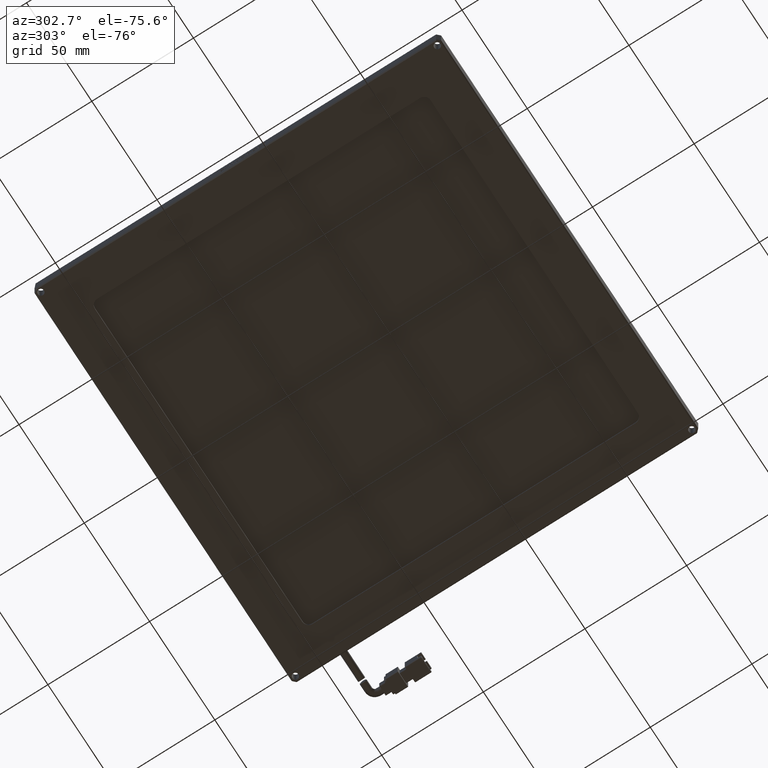
[diagram: clean part render]
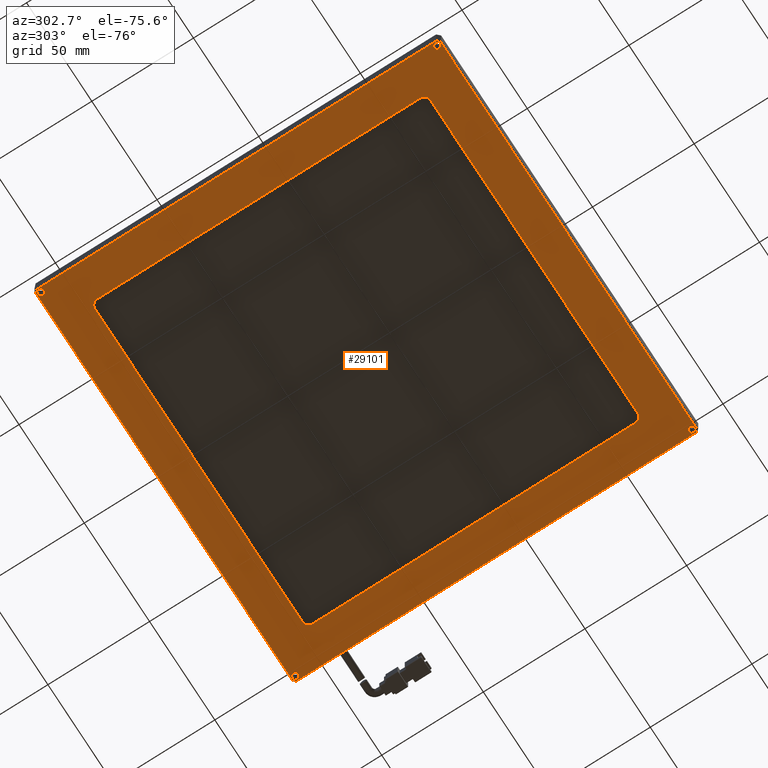
[diagram: same view with one face highlighted and labeled with its STEP entity id]
A machine part, auxiliary view. The second image highlights one B-rep face of the part: STEP entity #29101.
In plain terms, the highlighted planar face has unit normal (0, 0, -1).
Its self-contained STEP definition (entity closure, byte-faithful):
#13 = EDGE_CURVE ( 'NONE', #30790, #24594, #18859, .T. ) ;
#292 = LINE ( 'NONE', #3080, #12612 ) ;
#310 = CIRCLE ( 'NONE', #1237, 3.000000000000002700 ) ;
#332 = VERTEX_POINT ( 'NONE', #2171 ) ;
#413 = DIRECTION ( 'NONE',  ( 1.000000000000000000, 0.0000000000000000000, 0.0000000000000000000 ) ) ;
#469 = FACE_BOUND ( 'NONE', #778, .T. ) ;
#688 = CARTESIAN_POINT ( 'NONE',  ( 54.07393781975250100, 114.4508215962441000, -2.999999999999991100 ) ) ;
#711 = CARTESIAN_POINT ( 'NONE',  ( -140.2189553990610300, 112.4508215962441300, -3.000000000000000400 ) ) ;
#741 = VERTEX_POINT ( 'NONE', #29670 ) ;
#778 = EDGE_LOOP ( 'NONE', ( #16551, #5130 ) ) ;
#824 = DIRECTION ( 'NONE',  ( -0.0000000000000000000, -0.0000000000000000000, 1.000000000000000000 ) ) ;
#918 = AXIS2_PLACEMENT_3D ( 'NONE', #3998, #21204, #6425 ) ;
#1237 = AXIS2_PLACEMENT_3D ( 'NONE', #28952, #14183, #31458 ) ;
#1297 = CARTESIAN_POINT ( 'NONE',  ( -143.2189553990610300, 112.4508215962441300, -3.000000000000000400 ) ) ;
#1676 = DIRECTION ( 'NONE',  ( 1.000000000000000000, 0.0000000000000000000, 0.0000000000000000000 ) ) ;
#2059 = EDGE_CURVE ( 'NONE', #24871, #14903, #27898, .T. ) ;
#2142 = EDGE_CURVE ( 'NONE', #15700, #3007, #17507, .T. ) ;
#2171 = CARTESIAN_POINT ( 'NONE',  ( -142.5118486178745100, 114.4508215962441000, -3.000000000000000400 ) ) ;
#2452 = AXIS2_PLACEMENT_3D ( 'NONE', #29978, #15179, #413 ) ;
#2936 = CIRCLE ( 'NONE', #2452, 1.500000000000001300 ) ;
#2954 = ORIENTED_EDGE ( 'NONE', *, *, #11433, .T. ) ;
#3007 = VERTEX_POINT ( 'NONE', #24460 ) ;
#3080 = CARTESIAN_POINT ( 'NONE',  ( 55.28104460093896900, 113.2437148150576100, -2.999999999999986700 ) ) ;
#3350 = CARTESIAN_POINT ( 'NONE',  ( -144.2189553990610300, -67.54917840375586000, -3.000000000000000400 ) ) ;
#3359 = VERTEX_POINT ( 'NONE', #31782 ) ;
#3998 = CARTESIAN_POINT ( 'NONE',  ( -141.7189553990610300, -82.54917840375587400, -3.000000000000000400 ) ) ;
#4219 = CARTESIAN_POINT ( 'NONE',  ( 53.28104460093896200, -82.54917840375587400, -3.000000000000000400 ) ) ;
#4317 = AXIS2_PLACEMENT_3D ( 'NONE', #27905, #13156, #30449 ) ;
#4353 = CARTESIAN_POINT ( 'NONE',  ( 35.28104460093897600, -64.54917840375587400, -3.000000000000000400 ) ) ;
#4537 = ORIENTED_EDGE ( 'NONE', *, *, #19738, .T. ) ;
#4564 = CARTESIAN_POINT ( 'NONE',  ( 55.28104460093894100, 114.9508215962441300, -3.000000000000000400 ) ) ;
#4940 = DIRECTION ( 'NONE',  ( 0.0000000000000000000, 1.000000000000000000, 0.0000000000000000000 ) ) ;
#5125 = CIRCLE ( 'NONE', #20017, 1.500000000000001300 ) ;
#5130 = ORIENTED_EDGE ( 'NONE', *, *, #18262, .T. ) ;
#5170 = EDGE_CURVE ( 'NONE', #24581, #27344, #20148, .T. ) ;
#5208 = AXIS2_PLACEMENT_3D ( 'NONE', #12693, #29987, #15190 ) ;
#5272 = AXIS2_PLACEMENT_3D ( 'NONE', #12577, #29879, #15078 ) ;
#5401 = ORIENTED_EDGE ( 'NONE', *, *, #13168, .T. ) ;
#5645 = CARTESIAN_POINT ( 'NONE',  ( -142.5118486178745100, -84.54917840375586000, -3.000000000000007500 ) ) ;
#5815 = VECTOR ( 'NONE', #25730, 1000.000000000000100 ) ;
#5878 = LINE ( 'NONE', #24344, #24770 ) ;
#5970 = AXIS2_PLACEMENT_3D ( 'NONE', #4353, #21585, #6802 ) ;
#6017 = AXIS2_PLACEMENT_3D ( 'NONE', #9408, #26631, #11854 ) ;
#6043 = ORIENTED_EDGE ( 'NONE', *, *, #25933, .T. ) ;
#6160 = CARTESIAN_POINT ( 'NONE',  ( -142.5118486178745100, 114.4508215962441000, -3.000000000000000400 ) ) ;
#6204 = FACE_OUTER_BOUND ( 'NONE', #16748, .T. ) ;
#6329 = ORIENTED_EDGE ( 'NONE', *, *, #26061, .T. ) ;
#6425 = DIRECTION ( 'NONE',  ( 1.000000000000000000, 0.0000000000000000000, 0.0000000000000000000 ) ) ;
#6667 = DIRECTION ( 'NONE',  ( 1.000000000000000000, 0.0000000000000000000, 0.0000000000000000000 ) ) ;
#6802 = DIRECTION ( 'NONE',  ( 1.000000000000000000, 0.0000000000000000000, 0.0000000000000000000 ) ) ;
#7035 = ORIENTED_EDGE ( 'NONE', *, *, #30766, .T. ) ;
#7727 = ORIENTED_EDGE ( 'NONE', *, *, #21177, .T. ) ;
#7956 = VECTOR ( 'NONE', #28204, 1000.000000000000000 ) ;
#8343 = CARTESIAN_POINT ( 'NONE',  ( -144.2189553990610300, -84.54917840375584600, -3.000000000000000400 ) ) ;
#8359 = VERTEX_POINT ( 'NONE', #5645 ) ;
#8395 = EDGE_CURVE ( 'NONE', #30790, #8359, #28918, .T. ) ;
#8432 = CARTESIAN_POINT ( 'NONE',  ( -143.7189553990610000, -83.34207162256935000, -3.000000000000008900 ) ) ;
#8648 = LINE ( 'NONE', #4564, #20256 ) ;
#8876 = LINE ( 'NONE', #21960, #21991 ) ;
#9237 = VECTOR ( 'NONE', #18074, 1000.000000000000000 ) ;
#9359 = CARTESIAN_POINT ( 'NONE',  ( 54.78104460093896900, 112.4508215962441300, -3.000000000000000400 ) ) ;
#9408 = CARTESIAN_POINT ( 'NONE',  ( -123.7189553990610300, -64.54917840375588900, -3.000000000000000400 ) ) ;
#9663 = ORIENTED_EDGE ( 'NONE', *, *, #8395, .T. ) ;
#9886 = VERTEX_POINT ( 'NONE', #1297 ) ;
#9913 = EDGE_CURVE ( 'NONE', #14903, #24871, #20487, .T. ) ;
#10250 = CARTESIAN_POINT ( 'NONE',  ( 38.28104460093897600, 114.9508215962441300, -3.000000000000000400 ) ) ;
#10253 = ORIENTED_EDGE ( 'NONE', *, *, #14654, .T. ) ;
#10815 = ORIENTED_EDGE ( 'NONE', *, *, #14901, .T. ) ;
#10844 = EDGE_CURVE ( 'NONE', #332, #24247, #18781, .T. ) ;
#10870 = PLANE ( 'NONE',  #13078 ) ;
#10984 = CARTESIAN_POINT ( 'NONE',  ( -144.2189553990610300, 114.9508215962441300, -3.000000000000000400 ) ) ;
#10993 = CARTESIAN_POINT ( 'NONE',  ( -143.7189553990609700, -83.34207162256937800, -3.000000000000014200 ) ) ;
#11021 = EDGE_CURVE ( 'NONE', #9886, #23800, #2936, .T. ) ;
#11386 = CARTESIAN_POINT ( 'NONE',  ( 55.28104460093894100, -83.34207162256939200, -3.000000000000000400 ) ) ;
#11428 = CARTESIAN_POINT ( 'NONE',  ( 53.28104460093896200, 112.4508215962441300, -3.000000000000000400 ) ) ;
#11433 = EDGE_CURVE ( 'NONE', #741, #24594, #8648, .T. ) ;
#11854 = DIRECTION ( 'NONE',  ( 1.000000000000000000, 0.0000000000000000000, 0.0000000000000000000 ) ) ;
#12224 = CARTESIAN_POINT ( 'NONE',  ( -144.2189553990610300, 114.4508215962441000, -3.000000000000000400 ) ) ;
#12445 = CARTESIAN_POINT ( 'NONE',  ( -126.7189553990610300, -64.54917840375588900, -3.000000000000000400 ) ) ;
#12561 = CARTESIAN_POINT ( 'NONE',  ( 54.07393781975250100, -84.54917840375583200, -2.999999999999988500 ) ) ;
#12577 = CARTESIAN_POINT ( 'NONE',  ( 35.28104460093894800, 94.45082159624411100, -3.000000000000000400 ) ) ;
#12612 = VECTOR ( 'NONE', #22793, 1000.000000000000100 ) ;
#12693 = CARTESIAN_POINT ( 'NONE',  ( 53.28104460093896200, 112.4508215962441300, -3.000000000000000400 ) ) ;
#12696 = DIRECTION ( 'NONE',  ( 0.0000000000000000000, 1.000000000000000000, 0.0000000000000000000 ) ) ;
#12878 = EDGE_LOOP ( 'NONE', ( #25726, #31930 ) ) ;
#13018 = VECTOR ( 'NONE', #29511, 1000.000000000000000 ) ;
#13026 = ORIENTED_EDGE ( 'NONE', *, *, #2142, .T. ) ;
#13078 = AXIS2_PLACEMENT_3D ( 'NONE', #10984, #28220, #13460 ) ;
#13156 = DIRECTION ( 'NONE',  ( -0.0000000000000000000, -0.0000000000000000000, 1.000000000000000000 ) ) ;
#13168 = EDGE_CURVE ( 'NONE', #22637, #15700, #15489, .T. ) ;
#13460 = DIRECTION ( 'NONE',  ( -1.000000000000000000, 0.0000000000000000000, -0.0000000000000000000 ) ) ;
#13900 = CARTESIAN_POINT ( 'NONE',  ( 54.78104460093896900, -82.54917840375587400, -3.000000000000000400 ) ) ;
#13942 = DIRECTION ( 'NONE',  ( 1.000000000000000000, 0.0000000000000000000, 0.0000000000000000000 ) ) ;
#14183 = DIRECTION ( 'NONE',  ( 0.0000000000000000000, 0.0000000000000000000, 1.000000000000000000 ) ) ;
#14356 = VECTOR ( 'NONE', #12696, 1000.000000000000000 ) ;
#14488 = DIRECTION ( 'NONE',  ( -0.0000000000000000000, -1.000000000000000000, -0.0000000000000000000 ) ) ;
#14506 = CARTESIAN_POINT ( 'NONE',  ( 35.28104460093897600, -67.54917840375587400, -3.000000000000000400 ) ) ;
#14654 = EDGE_CURVE ( 'NONE', #17682, #3359, #23753, .T. ) ;
#14753 = ORIENTED_EDGE ( 'NONE', *, *, #13, .F. ) ;
#14901 = EDGE_CURVE ( 'NONE', #3359, #21448, #27628, .T. ) ;
#14903 = VERTEX_POINT ( 'NONE', #28321 ) ;
#15078 = DIRECTION ( 'NONE',  ( 1.000000000000000000, 0.0000000000000000000, 0.0000000000000000000 ) ) ;
#15179 = DIRECTION ( 'NONE',  ( -0.0000000000000000000, -0.0000000000000000000, 1.000000000000000000 ) ) ;
#15190 = DIRECTION ( 'NONE',  ( 1.000000000000000000, 0.0000000000000000000, 0.0000000000000000000 ) ) ;
#15489 = LINE ( 'NONE', #3350, #21237 ) ;
#15585 = CARTESIAN_POINT ( 'NONE',  ( -141.7189553990610300, 112.4508215962441300, -3.000000000000000400 ) ) ;
#15700 = VERTEX_POINT ( 'NONE', #14506 ) ;
#15744 = VERTEX_POINT ( 'NONE', #12445 ) ;
#16444 = DIRECTION ( 'NONE',  ( -0.0000000000000000000, -0.0000000000000000000, 1.000000000000000000 ) ) ;
#16551 = ORIENTED_EDGE ( 'NONE', *, *, #5170, .T. ) ;
#16748 = EDGE_LOOP ( 'NONE', ( #6329, #19308, #2954, #14753, #9663, #31591, #7035, #21105 ) ) ;
#17496 = CARTESIAN_POINT ( 'NONE',  ( -143.7189553990610000, 113.2437148150576100, -2.999999999999995100 ) ) ;
#17507 = CIRCLE ( 'NONE', #5970, 3.000000000000002700 ) ;
#17682 = VERTEX_POINT ( 'NONE', #18945 ) ;
#17918 = CARTESIAN_POINT ( 'NONE',  ( -123.7189553990610400, 97.45082159624411100, -3.000000000000000400 ) ) ;
#18062 = DIRECTION ( 'NONE',  ( 1.000000000000000000, 0.0000000000000000000, 0.0000000000000000000 ) ) ;
#18074 = DIRECTION ( 'NONE',  ( -1.000000000000000000, 0.0000000000000000000, -0.0000000000000000000 ) ) ;
#18077 = VECTOR ( 'NONE', #23326, 1000.000000000000000 ) ;
#18091 = VERTEX_POINT ( 'NONE', #8432 ) ;
#18117 = DIRECTION ( 'NONE',  ( 1.000000000000000000, -0.0000000000000000000, 0.0000000000000000000 ) ) ;
#18262 = EDGE_CURVE ( 'NONE', #27344, #24581, #31946, .T. ) ;
#18362 = ORIENTED_EDGE ( 'NONE', *, *, #28048, .T. ) ;
#18466 = ORIENTED_EDGE ( 'NONE', *, *, #30860, .T. ) ;
#18601 = FACE_BOUND ( 'NONE', #12878, .T. ) ;
#18781 = LINE ( 'NONE', #6160, #31907 ) ;
#18859 = LINE ( 'NONE', #12561, #18077 ) ;
#18945 = CARTESIAN_POINT ( 'NONE',  ( 38.28104460093895500, 94.45082159624411100, -3.000000000000000400 ) ) ;
#19308 = ORIENTED_EDGE ( 'NONE', *, *, #29535, .F. ) ;
#19394 = CIRCLE ( 'NONE', #6017, 3.000000000000002700 ) ;
#19738 = EDGE_CURVE ( 'NONE', #23800, #9886, #5125, .T. ) ;
#19745 = CARTESIAN_POINT ( 'NONE',  ( 54.07393781975253000, -84.54917840375584600, -2.999999999999993300 ) ) ;
#20017 = AXIS2_PLACEMENT_3D ( 'NONE', #15585, #824, #18062 ) ;
#20098 = AXIS2_PLACEMENT_3D ( 'NONE', #11428, #28709, #13942 ) ;
#20148 = CIRCLE ( 'NONE', #4317, 1.500000000000001300 ) ;
#20256 = VECTOR ( 'NONE', #14488, 1000.000000000000000 ) ;
#20487 = CIRCLE ( 'NONE', #918, 1.500000000000001300 ) ;
#21105 = ORIENTED_EDGE ( 'NONE', *, *, #10844, .F. ) ;
#21106 = AXIS2_PLACEMENT_3D ( 'NONE', #4219, #21455, #6667 ) ;
#21177 = EDGE_CURVE ( 'NONE', #15744, #22637, #19394, .T. ) ;
#21204 = DIRECTION ( 'NONE',  ( -0.0000000000000000000, -0.0000000000000000000, 1.000000000000000000 ) ) ;
#21237 = VECTOR ( 'NONE', #18117, 1000.000000000000000 ) ;
#21448 = VERTEX_POINT ( 'NONE', #17918 ) ;
#21455 = DIRECTION ( 'NONE',  ( -0.0000000000000000000, -0.0000000000000000000, 1.000000000000000000 ) ) ;
#21579 = EDGE_CURVE ( 'NONE', #18091, #8359, #31301, .T. ) ;
#21585 = DIRECTION ( 'NONE',  ( 0.0000000000000000000, 0.0000000000000000000, 1.000000000000000000 ) ) ;
#21740 = EDGE_LOOP ( 'NONE', ( #5401, #13026, #18466, #10253, #10815, #6043, #25927, #7727 ) ) ;
#21782 = EDGE_CURVE ( 'NONE', #28418, #15744, #8876, .T. ) ;
#21894 = EDGE_CURVE ( 'NONE', #22213, #23031, #27386, .T. ) ;
#21960 = CARTESIAN_POINT ( 'NONE',  ( -126.7189553990610300, 114.9508215962441300, -3.000000000000000400 ) ) ;
#21991 = VECTOR ( 'NONE', #24451, 1000.000000000000000 ) ;
#22213 = VERTEX_POINT ( 'NONE', #26346 ) ;
#22637 = VERTEX_POINT ( 'NONE', #27943 ) ;
#22793 = DIRECTION ( 'NONE',  ( -0.7071067811865474600, 0.7071067811865474600, 0.0000000000000000000 ) ) ;
#23031 = VERTEX_POINT ( 'NONE', #9359 ) ;
#23326 = DIRECTION ( 'NONE',  ( 0.7071067811865419100, 0.7071067811865531200, -7.208509036065272500E-015 ) ) ;
#23440 = DIRECTION ( 'NONE',  ( -0.7071067811865531200, -0.7071067811865419100, 7.113242396821792200E-015 ) ) ;
#23753 = CIRCLE ( 'NONE', #5272, 3.000000000000002700 ) ;
#23800 = VERTEX_POINT ( 'NONE', #711 ) ;
#24247 = VERTEX_POINT ( 'NONE', #17496 ) ;
#24344 = CARTESIAN_POINT ( 'NONE',  ( -143.7189553990610000, 114.9508215962441300, -3.000000000000000400 ) ) ;
#24352 = FACE_BOUND ( 'NONE', #27908, .T. ) ;
#24451 = DIRECTION ( 'NONE',  ( -0.0000000000000000000, -1.000000000000000000, -0.0000000000000000000 ) ) ;
#24460 = CARTESIAN_POINT ( 'NONE',  ( 38.28104460093897600, -64.54917840375587400, -3.000000000000000400 ) ) ;
#24581 = VERTEX_POINT ( 'NONE', #13900 ) ;
#24594 = VERTEX_POINT ( 'NONE', #11386 ) ;
#24770 = VECTOR ( 'NONE', #4940, 1000.000000000000000 ) ;
#24857 = CARTESIAN_POINT ( 'NONE',  ( -143.2189553990610300, -82.54917840375587400, -3.000000000000000400 ) ) ;
#24871 = VERTEX_POINT ( 'NONE', #24857 ) ;
#25107 = FACE_BOUND ( 'NONE', #21740, .T. ) ;
#25726 = ORIENTED_EDGE ( 'NONE', *, *, #9913, .T. ) ;
#25730 = DIRECTION ( 'NONE',  ( 0.7071067811865455700, -0.7071067811865495700, 0.0000000000000000000 ) ) ;
#25811 = CARTESIAN_POINT ( 'NONE',  ( -144.2189553990610300, 97.45082159624411100, -3.000000000000000400 ) ) ;
#25927 = ORIENTED_EDGE ( 'NONE', *, *, #21782, .T. ) ;
#25933 = EDGE_CURVE ( 'NONE', #21448, #28418, #310, .T. ) ;
#26061 = EDGE_CURVE ( 'NONE', #332, #32012, #31945, .T. ) ;
#26222 = ORIENTED_EDGE ( 'NONE', *, *, #21894, .T. ) ;
#26346 = CARTESIAN_POINT ( 'NONE',  ( 51.78104460093896200, 112.4508215962441300, -3.000000000000000400 ) ) ;
#26631 = DIRECTION ( 'NONE',  ( 0.0000000000000000000, -0.0000000000000000000, 1.000000000000000000 ) ) ;
#26913 = ORIENTED_EDGE ( 'NONE', *, *, #11021, .T. ) ;
#27344 = VERTEX_POINT ( 'NONE', #28111 ) ;
#27386 = CIRCLE ( 'NONE', #5208, 1.500000000000001300 ) ;
#27501 = CARTESIAN_POINT ( 'NONE',  ( -126.7189553990610300, 94.45082159624411100, -3.000000000000000400 ) ) ;
#27628 = LINE ( 'NONE', #25811, #7956 ) ;
#27898 = CIRCLE ( 'NONE', #28065, 1.500000000000001300 ) ;
#27905 = CARTESIAN_POINT ( 'NONE',  ( 53.28104460093896200, -82.54917840375587400, -3.000000000000000400 ) ) ;
#27908 = EDGE_LOOP ( 'NONE', ( #4537, #26913 ) ) ;
#27943 = CARTESIAN_POINT ( 'NONE',  ( -123.7189553990610300, -67.54917840375587400, -3.000000000000000400 ) ) ;
#28048 = EDGE_CURVE ( 'NONE', #23031, #22213, #28680, .T. ) ;
#28065 = AXIS2_PLACEMENT_3D ( 'NONE', #31236, #16444, #1676 ) ;
#28111 = CARTESIAN_POINT ( 'NONE',  ( 51.78104460093896200, -82.54917840375587400, -3.000000000000000400 ) ) ;
#28204 = DIRECTION ( 'NONE',  ( -1.000000000000000000, 0.0000000000000000000, -0.0000000000000000000 ) ) ;
#28220 = DIRECTION ( 'NONE',  ( 0.0000000000000000000, 0.0000000000000000000, -1.000000000000000000 ) ) ;
#28243 = LINE ( 'NONE', #10250, #14356 ) ;
#28321 = CARTESIAN_POINT ( 'NONE',  ( -140.2189553990610300, -82.54917840375587400, -3.000000000000000400 ) ) ;
#28418 = VERTEX_POINT ( 'NONE', #27501 ) ;
#28680 = CIRCLE ( 'NONE', #20098, 1.500000000000001300 ) ;
#28709 = DIRECTION ( 'NONE',  ( -0.0000000000000000000, -0.0000000000000000000, 1.000000000000000000 ) ) ;
#28918 = LINE ( 'NONE', #8343, #9237 ) ;
#28952 = CARTESIAN_POINT ( 'NONE',  ( -123.7189553990610400, 94.45082159624411100, -3.000000000000000400 ) ) ;
#29101 = ADVANCED_FACE ( 'NONE', ( #25107, #469, #18601, #30956, #24352, #6204 ), #10870, .T. ) ;
#29478 = EDGE_LOOP ( 'NONE', ( #18362, #26222 ) ) ;
#29511 = DIRECTION ( 'NONE',  ( 1.000000000000000000, -0.0000000000000000000, 0.0000000000000000000 ) ) ;
#29535 = EDGE_CURVE ( 'NONE', #741, #32012, #292, .T. ) ;
#29670 = CARTESIAN_POINT ( 'NONE',  ( 55.28104460093896900, 113.2437148150576700, -2.999999999999992000 ) ) ;
#29879 = DIRECTION ( 'NONE',  ( 0.0000000000000000000, 0.0000000000000000000, 1.000000000000000000 ) ) ;
#29978 = CARTESIAN_POINT ( 'NONE',  ( -141.7189553990610300, 112.4508215962441300, -3.000000000000000400 ) ) ;
#29987 = DIRECTION ( 'NONE',  ( -0.0000000000000000000, -0.0000000000000000000, 1.000000000000000000 ) ) ;
#30449 = DIRECTION ( 'NONE',  ( 1.000000000000000000, 0.0000000000000000000, 0.0000000000000000000 ) ) ;
#30766 = EDGE_CURVE ( 'NONE', #18091, #24247, #5878, .T. ) ;
#30790 = VERTEX_POINT ( 'NONE', #19745 ) ;
#30860 = EDGE_CURVE ( 'NONE', #3007, #17682, #28243, .T. ) ;
#30956 = FACE_BOUND ( 'NONE', #29478, .T. ) ;
#31236 = CARTESIAN_POINT ( 'NONE',  ( -141.7189553990610300, -82.54917840375587400, -3.000000000000000400 ) ) ;
#31301 = LINE ( 'NONE', #10993, #5815 ) ;
#31458 = DIRECTION ( 'NONE',  ( 1.000000000000000000, 0.0000000000000000000, 0.0000000000000000000 ) ) ;
#31591 = ORIENTED_EDGE ( 'NONE', *, *, #21579, .F. ) ;
#31782 = CARTESIAN_POINT ( 'NONE',  ( 35.28104460093894800, 97.45082159624411100, -3.000000000000000400 ) ) ;
#31907 = VECTOR ( 'NONE', #23440, 1000.000000000000000 ) ;
#31930 = ORIENTED_EDGE ( 'NONE', *, *, #2059, .T. ) ;
#31945 = LINE ( 'NONE', #12224, #13018 ) ;
#31946 = CIRCLE ( 'NONE', #21106, 1.500000000000001300 ) ;
#32012 = VERTEX_POINT ( 'NONE', #688 ) ;